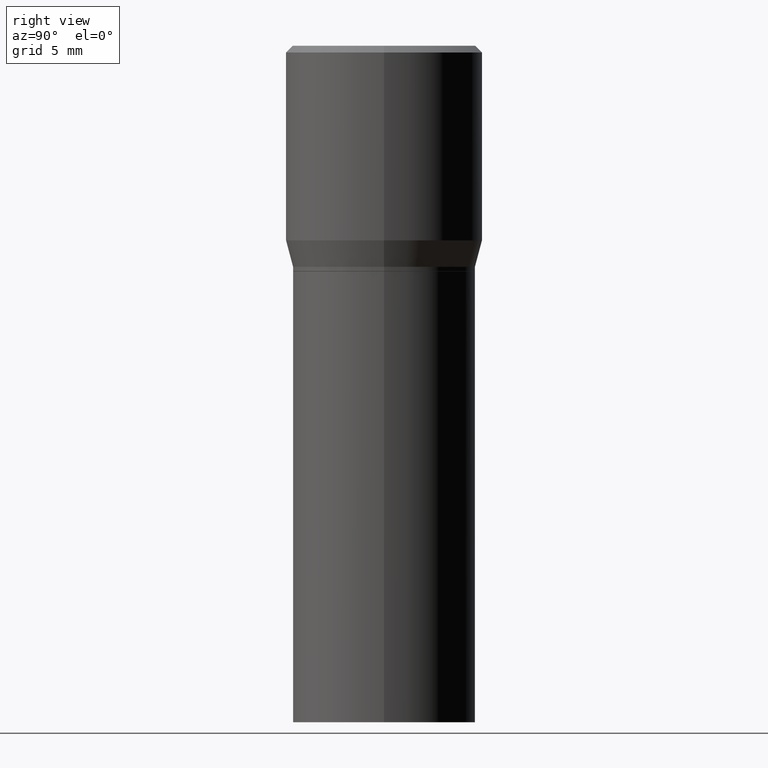
[diagram: clean part render]
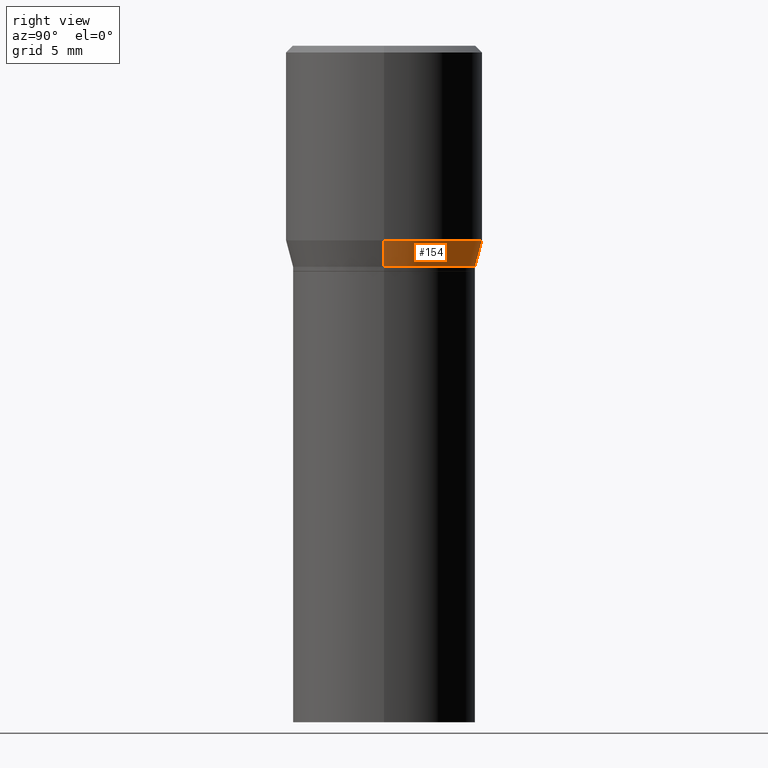
[diagram: same view with one face highlighted and labeled with its STEP entity id]
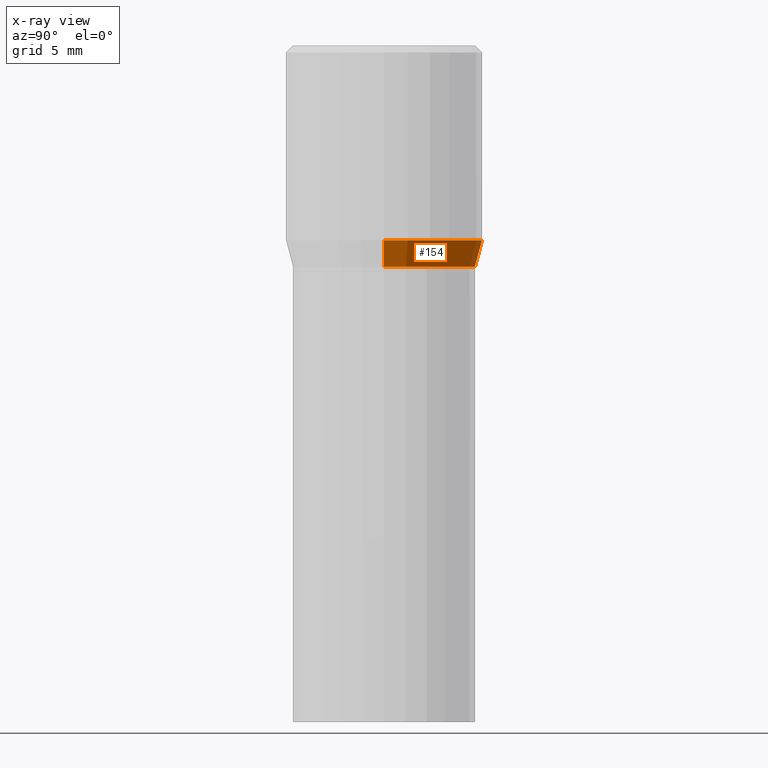
[diagram: x-ray of the same camera — body ghosted, the highlighted face saturated]
A machine part, right view. The second image highlights one B-rep face of the part: STEP entity #154.
The next image is the same camera in x-ray: the body ghosted, the highlighted face saturated — about 0% of this face is hidden behind the body in this view.
In plain terms, the highlighted conical surface has half-angle 15 deg.
Its self-contained STEP definition (entity closure, byte-faithful):
#3 = CARTESIAN_POINT ( 'NONE',  ( 1.055448208544146876E-29, -1.506900319041867721E-15, -0.4315934048615475138 ) ) ;
#18 = DIRECTION ( 'NONE',  ( 0.2588190451025211836, 1.565188264969622559E-15, 0.9659258262890679791 ) ) ;
#25 = CARTESIAN_POINT ( 'NONE',  ( 0.2187500000000000000, -3.034423404785738170E-15, -0.4315934048615475138 ) ) ;
#27 = VERTEX_POINT ( 'NONE', #240 ) ;
#32 = CIRCLE ( 'NONE', #365, 0.2187500000000000000 ) ;
#36 = EDGE_CURVE ( 'NONE', #55, #227, #190, .T. ) ;
#55 = VERTEX_POINT ( 'NONE', #243 ) ;
#62 = CARTESIAN_POINT ( 'NONE',  ( 1.198279715030717173E-29, -1.710825856033141537E-15, -0.4900000000000001021 ) ) ;
#74 = ORIENTED_EDGE ( 'NONE', *, *, #36, .T. ) ;
#84 = LINE ( 'NONE', #402, #337 ) ;
#135 = EDGE_CURVE ( 'NONE', #437, #27, #32, .T. ) ;
#136 = CONICAL_SURFACE ( 'NONE', #459, 0.2031000000000000583, 0.2617993877991499074 ) ;
#145 = DIRECTION ( 'NONE',  ( -2.445468806185136597E-29, 3.491481338843145583E-15, 1.000000000000000000 ) ) ;
#154 = ADVANCED_FACE ( 'NONE', ( #248 ), #136, .T. ) ;
#155 = ORIENTED_EDGE ( 'NONE', *, *, #335, .F. ) ;
#190 = CIRCLE ( 'NONE', #353, 0.2031000000000000583 ) ;
#206 = DIRECTION ( 'NONE',  ( -2.445468806185136597E-29, 3.491481338843145583E-15, 1.000000000000000000 ) ) ;
#212 = DIRECTION ( 'NONE',  ( 1.000000000000000000, -6.982962677686265133E-15, 0.000000000000000000 ) ) ;
#217 = CARTESIAN_POINT ( 'NONE',  ( 1.198279715030717173E-29, -1.710825856033141537E-15, -0.4900000000000001021 ) ) ;
#227 = VERTEX_POINT ( 'NONE', #446 ) ;
#229 = VECTOR ( 'NONE', #297, 39.37007874015748854 ) ;
#236 = EDGE_CURVE ( 'NONE', #227, #27, #379, .T. ) ;
#240 = CARTESIAN_POINT ( 'NONE',  ( -0.2187500000000000000, 4.741191543335144142E-17, -0.4315934048615475138 ) ) ;
#243 = CARTESIAN_POINT ( 'NONE',  ( 0.2031000000000000583, -3.129065575871222509E-15, -0.4900000000000001021 ) ) ;
#248 = FACE_OUTER_BOUND ( 'NONE', #398, .T. ) ;
#254 = DIRECTION ( 'NONE',  ( -2.445468806185136597E-29, 3.491481338843145583E-15, 1.000000000000000000 ) ) ;
#264 = ORIENTED_EDGE ( 'NONE', *, *, #236, .T. ) ;
#277 = DIRECTION ( 'NONE',  ( 1.000000000000000000, -6.982962677686265922E-15, 0.000000000000000000 ) ) ;
#297 = DIRECTION ( 'NONE',  ( -0.2588190451025211836, 5.211531920934547886E-15, 0.9659258262890679791 ) ) ;
#333 = ORIENTED_EDGE ( 'NONE', *, *, #135, .F. ) ;
#335 = EDGE_CURVE ( 'NONE', #55, #437, #84, .T. ) ;
#337 = VECTOR ( 'NONE', #18, 39.37007874015748854 ) ;
#353 = AXIS2_PLACEMENT_3D ( 'NONE', #62, #206, #277 ) ;
#363 = DIRECTION ( 'NONE',  ( 1.000000000000000000, -6.982962677686265922E-15, 0.000000000000000000 ) ) ;
#365 = AXIS2_PLACEMENT_3D ( 'NONE', #3, #145, #212 ) ;
#379 = LINE ( 'NONE', #443, #229 ) ;
#398 = EDGE_LOOP ( 'NONE', ( #74, #264, #333, #155 ) ) ;
#402 = CARTESIAN_POINT ( 'NONE',  ( 0.2031000000000000583, -3.129065575871222509E-15, -0.4900000000000001021 ) ) ;
#437 = VERTEX_POINT ( 'NONE', #25 ) ;
#443 = CARTESIAN_POINT ( 'NONE',  ( -0.2031000000000000583, -2.677135597043777931E-16, -0.4900000000000001021 ) ) ;
#446 = CARTESIAN_POINT ( 'NONE',  ( -0.2031000000000000583, -1.101508221355132898E-16, -0.4900000000000001021 ) ) ;
#459 = AXIS2_PLACEMENT_3D ( 'NONE', #217, #254, #363 ) ;